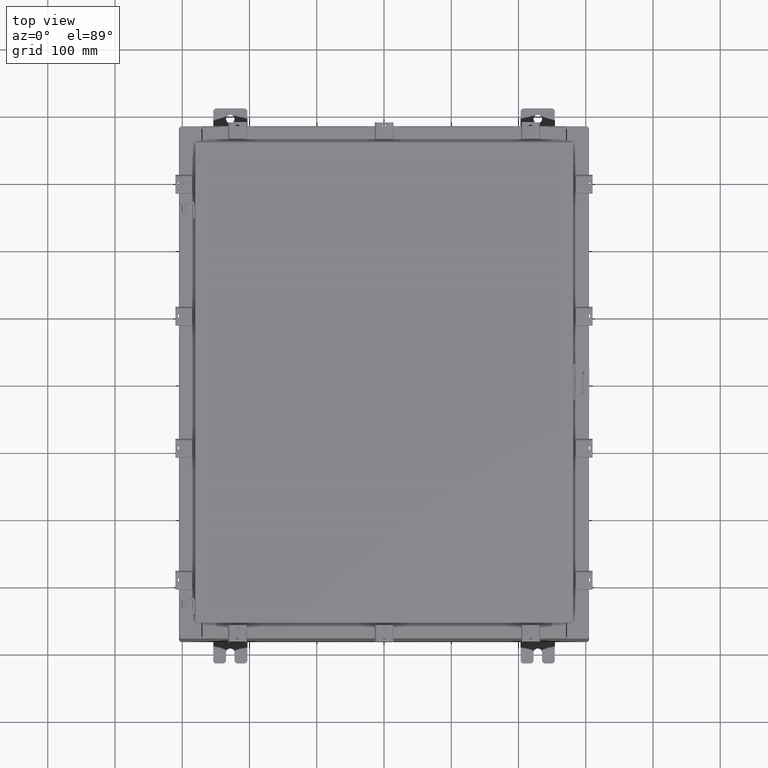
[diagram: clean part render]
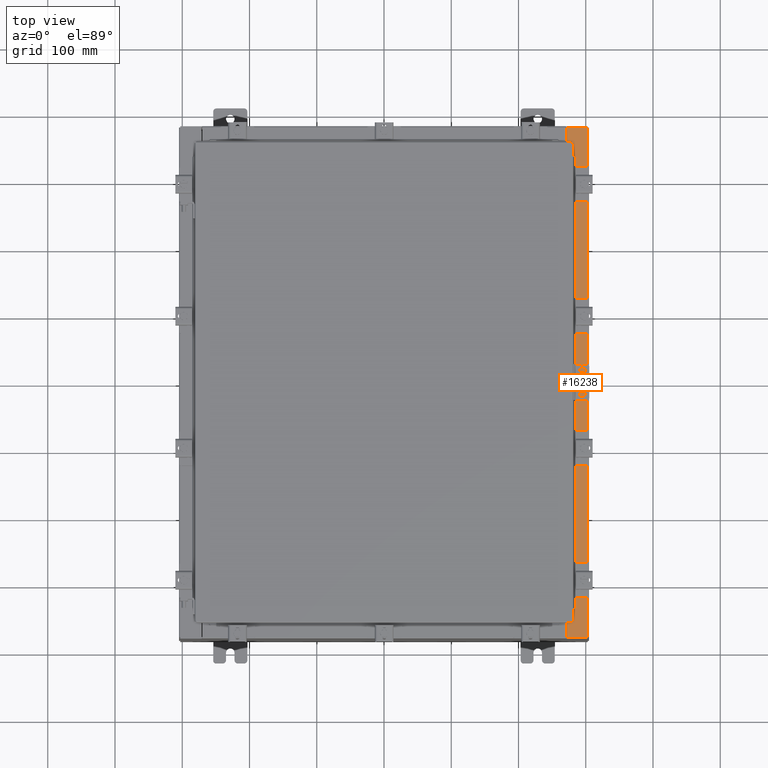
[diagram: same view with one face highlighted and labeled with its STEP entity id]
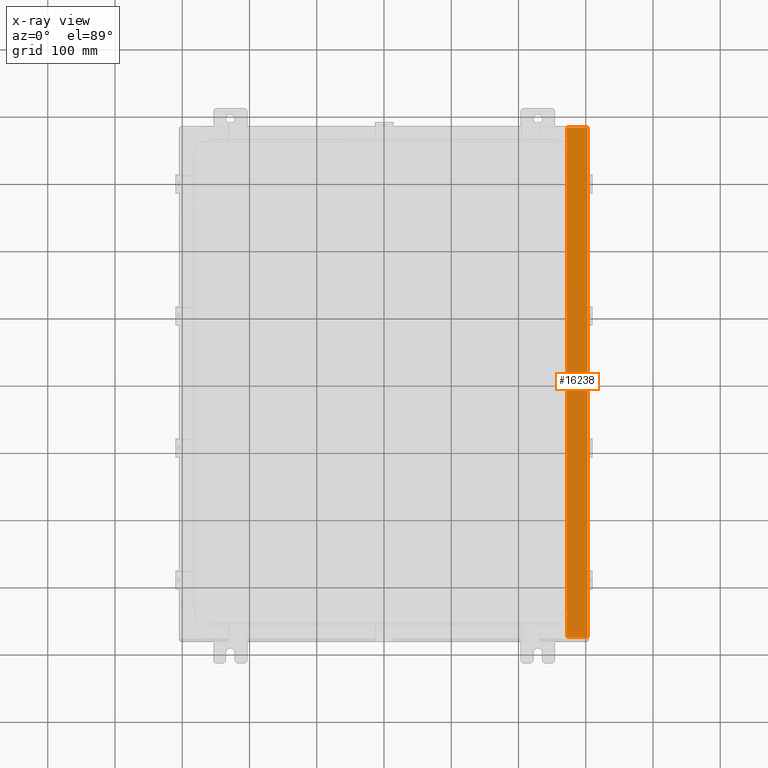
[diagram: x-ray of the same camera — body ghosted, the highlighted face saturated]
A machine part, top view. The second image highlights one B-rep face of the part: STEP entity #16238.
The next image is the same camera in x-ray: the body ghosted, the highlighted face saturated — about 0% of this face is hidden behind the body in this view.
In plain terms, the highlighted planar face has unit normal (-0, 0, -1).
Its self-contained STEP definition (entity closure, byte-faithful):
#225 = VERTEX_POINT ( 'NONE', #969 ) ;
#397 = PLANE ( 'NONE',  #10450 ) ;
#464 = DIRECTION ( 'NONE',  ( -1.000000000000000000, 0.0000000000000000000, 7.132762385546384700E-015 ) ) ;
#529 = CIRCLE ( 'NONE', #22312, 0.01867499999999949400 ) ;
#663 = CARTESIAN_POINT ( 'NONE',  ( 10.75005000000004100, 13.61242500000000000, 11.92530000000000900 ) ) ;
#844 = EDGE_CURVE ( 'NONE', #7462, #11203, #1697, .T. ) ;
#969 = CARTESIAN_POINT ( 'NONE',  ( 10.69970000000003900, -13.63109999999999800, 11.92530000000000900 ) ) ;
#1262 = EDGE_CURVE ( 'NONE', #14095, #10510, #8627, .T. ) ;
#1395 = EDGE_CURVE ( 'NONE', #4343, #19959, #10035, .T. ) ;
#1424 = ORIENTED_EDGE ( 'NONE', *, *, #4435, .F. ) ;
#1697 = LINE ( 'NONE', #3269, #20173 ) ;
#1738 = ORIENTED_EDGE ( 'NONE', *, *, #5591, .T. ) ;
#1958 = ORIENTED_EDGE ( 'NONE', *, *, #7115, .F. ) ;
#2378 = DIRECTION ( 'NONE',  ( 1.000000000000000000, 0.0000000000000000000, 0.0000000000000000000 ) ) ;
#2400 = VECTOR ( 'NONE', #6087, 39.37007874015748100 ) ;
#2420 = DIRECTION ( 'NONE',  ( 1.000000000000000000, 0.0000000000000000000, 0.0000000000000000000 ) ) ;
#3094 = CARTESIAN_POINT ( 'NONE',  ( 10.71270000000004100, -13.59375000000000000, 11.92530000000000900 ) ) ;
#3223 = EDGE_CURVE ( 'NONE', #19226, #22308, #4120, .T. ) ;
#3269 = CARTESIAN_POINT ( 'NONE',  ( 10.69970000000003900, 0.0000000000000000000, 11.92530000000000900 ) ) ;
#4112 = VERTEX_POINT ( 'NONE', #23166 ) ;
#4120 = LINE ( 'NONE', #18035, #13096 ) ;
#4136 = CARTESIAN_POINT ( 'NONE',  ( 10.69970000000003900, 14.92529999999999800, 11.92530000000000900 ) ) ;
#4218 = EDGE_CURVE ( 'NONE', #22898, #11203, #15830, .T. ) ;
#4343 = VERTEX_POINT ( 'NONE', #21926 ) ;
#4435 = EDGE_CURVE ( 'NONE', #225, #14220, #20850, .T. ) ;
#4687 = CARTESIAN_POINT ( 'NONE',  ( 8.532114493236847900E-014, 14.92529999999999800, 11.92530000000008500 ) ) ;
#4947 = EDGE_CURVE ( 'NONE', #10510, #4343, #16620, .T. ) ;
#5591 = EDGE_CURVE ( 'NONE', #4112, #7462, #19133, .T. ) ;
#5923 = CARTESIAN_POINT ( 'NONE',  ( 10.75005000000004100, 13.63109999999999800, 11.92530000000000900 ) ) ;
#6087 = DIRECTION ( 'NONE',  ( 1.000000000000000000, 0.0000000000000000000, 0.0000000000000000000 ) ) ;
#6859 = VECTOR ( 'NONE', #9063, 39.37007874015748100 ) ;
#7115 = EDGE_CURVE ( 'NONE', #14220, #14095, #21282, .T. ) ;
#7408 = DIRECTION ( 'NONE',  ( 0.0000000000000000000, -1.000000000000000000, 0.0000000000000000000 ) ) ;
#7462 = VERTEX_POINT ( 'NONE', #4136 ) ;
#7537 = CARTESIAN_POINT ( 'NONE',  ( 8.532114493236847900E-014, 0.0000000000000000000, 11.92530000000008500 ) ) ;
#7678 = ORIENTED_EDGE ( 'NONE', *, *, #844, .T. ) ;
#8334 = DIRECTION ( 'NONE',  ( 7.132762385546384700E-015, 0.0000000000000000000, 1.000000000000000000 ) ) ;
#8441 = EDGE_CURVE ( 'NONE', #4112, #22308, #21509, .T. ) ;
#8462 = VECTOR ( 'NONE', #19816, 39.37007874015748100 ) ;
#8627 = LINE ( 'NONE', #16074, #17596 ) ;
#9063 = DIRECTION ( 'NONE',  ( -1.000000000000000000, 0.0000000000000000000, 0.0000000000000000000 ) ) ;
#9676 = ORIENTED_EDGE ( 'NONE', *, *, #3223, .T. ) ;
#10035 = LINE ( 'NONE', #18484, #10596 ) ;
#10450 = AXIS2_PLACEMENT_3D ( 'NONE', #7537, #11156, #464 ) ;
#10510 = VERTEX_POINT ( 'NONE', #13989 ) ;
#10596 = VECTOR ( 'NONE', #2378, 39.37007874015748100 ) ;
#11156 = DIRECTION ( 'NONE',  ( -7.132762385546384700E-015, 0.0000000000000000000, -1.000000000000000000 ) ) ;
#11203 = VERTEX_POINT ( 'NONE', #14494 ) ;
#11889 = VECTOR ( 'NONE', #17307, 39.37007874015748100 ) ;
#12474 = FACE_OUTER_BOUND ( 'NONE', #22848, .T. ) ;
#12705 = CARTESIAN_POINT ( 'NONE',  ( 10.69970000000003900, 0.0000000000000000000, 11.92530000000000900 ) ) ;
#13026 = DIRECTION ( 'NONE',  ( -0.0000000000000000000, -1.000000000000000000, -0.0000000000000000000 ) ) ;
#13096 = VECTOR ( 'NONE', #19776, 39.37007874015748100 ) ;
#13149 = DIRECTION ( 'NONE',  ( 7.132762385546384700E-015, 0.0000000000000000000, 1.000000000000000000 ) ) ;
#13242 = ORIENTED_EDGE ( 'NONE', *, *, #17585, .T. ) ;
#13590 = ORIENTED_EDGE ( 'NONE', *, *, #8441, .F. ) ;
#13989 = CARTESIAN_POINT ( 'NONE',  ( 10.71270000000004100, -13.59375000000000000, 11.92530000000000900 ) ) ;
#14095 = VERTEX_POINT ( 'NONE', #23094 ) ;
#14220 = VERTEX_POINT ( 'NONE', #21877 ) ;
#14386 = VECTOR ( 'NONE', #20877, 39.37007874015748100 ) ;
#14494 = CARTESIAN_POINT ( 'NONE',  ( 10.69970000000003900, 13.63109999999999800, 11.92530000000000900 ) ) ;
#15003 = EDGE_CURVE ( 'NONE', #19959, #22898, #529, .T. ) ;
#15322 = ORIENTED_EDGE ( 'NONE', *, *, #1395, .F. ) ;
#15738 = CARTESIAN_POINT ( 'NONE',  ( 10.69970000000003900, -14.92529999999999800, 11.92530000000000900 ) ) ;
#15830 = LINE ( 'NONE', #21604, #6859 ) ;
#16074 = CARTESIAN_POINT ( 'NONE',  ( 10.75005000000004100, -13.59375000000000000, 11.92530000000000900 ) ) ;
#16238 = ADVANCED_FACE ( 'NONE', ( #12474 ), #397, .F. ) ;
#16425 = ORIENTED_EDGE ( 'NONE', *, *, #1262, .F. ) ;
#16620 = LINE ( 'NONE', #3094, #11889 ) ;
#16801 = CARTESIAN_POINT ( 'NONE',  ( 10.69970000000003900, -13.63109999999999800, 11.92530000000000900 ) ) ;
#17285 = VECTOR ( 'NONE', #13026, 39.37007874015748100 ) ;
#17307 = DIRECTION ( 'NONE',  ( -0.0000000000000000000, 1.000000000000000000, -0.0000000000000000000 ) ) ;
#17434 = AXIS2_PLACEMENT_3D ( 'NONE', #19083, #8334, #20862 ) ;
#17585 = EDGE_CURVE ( 'NONE', #225, #19226, #22228, .T. ) ;
#17596 = VECTOR ( 'NONE', #21505, 39.37007874015748100 ) ;
#18035 = CARTESIAN_POINT ( 'NONE',  ( 8.532114493236847900E-014, -14.92529999999999800, 11.92530000000008500 ) ) ;
#18309 = CARTESIAN_POINT ( 'NONE',  ( 11.91230000000003700, -14.92529999999999800, 11.92530000000000000 ) ) ;
#18484 = CARTESIAN_POINT ( 'NONE',  ( 10.71270000000004100, 13.59375000000000000, 11.92530000000000900 ) ) ;
#18542 = ORIENTED_EDGE ( 'NONE', *, *, #4218, .F. ) ;
#18689 = ORIENTED_EDGE ( 'NONE', *, *, #15003, .F. ) ;
#19083 = CARTESIAN_POINT ( 'NONE',  ( 10.75005000000004100, -13.61242500000000000, 11.92530000000000900 ) ) ;
#19133 = LINE ( 'NONE', #4687, #14386 ) ;
#19226 = VERTEX_POINT ( 'NONE', #15738 ) ;
#19776 = DIRECTION ( 'NONE',  ( 1.000000000000000000, 0.0000000000000000000, -7.132762385546384700E-015 ) ) ;
#19816 = DIRECTION ( 'NONE',  ( 0.0000000000000000000, -1.000000000000000000, 0.0000000000000000000 ) ) ;
#19959 = VERTEX_POINT ( 'NONE', #21025 ) ;
#20173 = VECTOR ( 'NONE', #7408, 39.37007874015748100 ) ;
#20838 = CARTESIAN_POINT ( 'NONE',  ( 11.91230000000003700, -14.92529999999999800, 11.92530000000000000 ) ) ;
#20850 = LINE ( 'NONE', #16801, #2400 ) ;
#20862 = DIRECTION ( 'NONE',  ( 1.000000000000000000, 0.0000000000000000000, 0.0000000000000000000 ) ) ;
#20877 = DIRECTION ( 'NONE',  ( -1.000000000000000000, 0.0000000000000000000, 7.132762385546384700E-015 ) ) ;
#21025 = CARTESIAN_POINT ( 'NONE',  ( 10.75005000000004100, 13.59375000000000000, 11.92530000000000900 ) ) ;
#21282 = CIRCLE ( 'NONE', #17434, 0.01867499999999949400 ) ;
#21505 = DIRECTION ( 'NONE',  ( -1.000000000000000000, 0.0000000000000000000, 0.0000000000000000000 ) ) ;
#21509 = LINE ( 'NONE', #18309, #17285 ) ;
#21604 = CARTESIAN_POINT ( 'NONE',  ( 10.75005000000004100, 13.63109999999999800, 11.92530000000000900 ) ) ;
#21877 = CARTESIAN_POINT ( 'NONE',  ( 10.75005000000004100, -13.63109999999999800, 11.92530000000000900 ) ) ;
#21926 = CARTESIAN_POINT ( 'NONE',  ( 10.71270000000004100, 13.59375000000000000, 11.92530000000000900 ) ) ;
#22228 = LINE ( 'NONE', #12705, #8462 ) ;
#22308 = VERTEX_POINT ( 'NONE', #20838 ) ;
#22312 = AXIS2_PLACEMENT_3D ( 'NONE', #663, #13149, #2420 ) ;
#22848 = EDGE_LOOP ( 'NONE', ( #1424, #13242, #9676, #13590, #1738, #7678, #18542, #18689, #15322, #23107, #16425, #1958 ) ) ;
#22898 = VERTEX_POINT ( 'NONE', #5923 ) ;
#23094 = CARTESIAN_POINT ( 'NONE',  ( 10.75005000000004100, -13.59375000000000000, 11.92530000000000900 ) ) ;
#23107 = ORIENTED_EDGE ( 'NONE', *, *, #4947, .F. ) ;
#23166 = CARTESIAN_POINT ( 'NONE',  ( 11.91230000000003700, 14.92529999999999800, 11.92530000000000000 ) ) ;